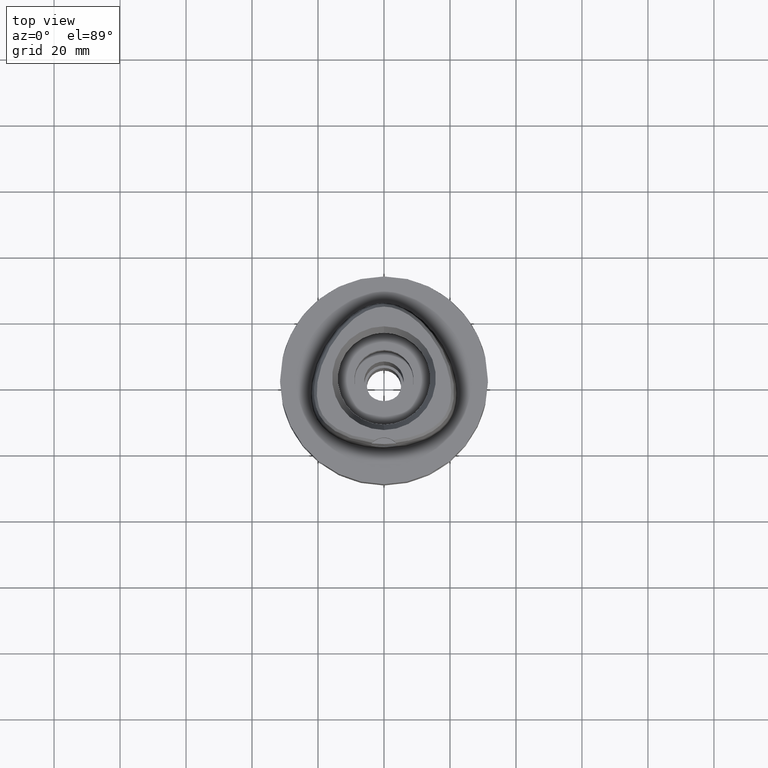
[diagram: clean part render]
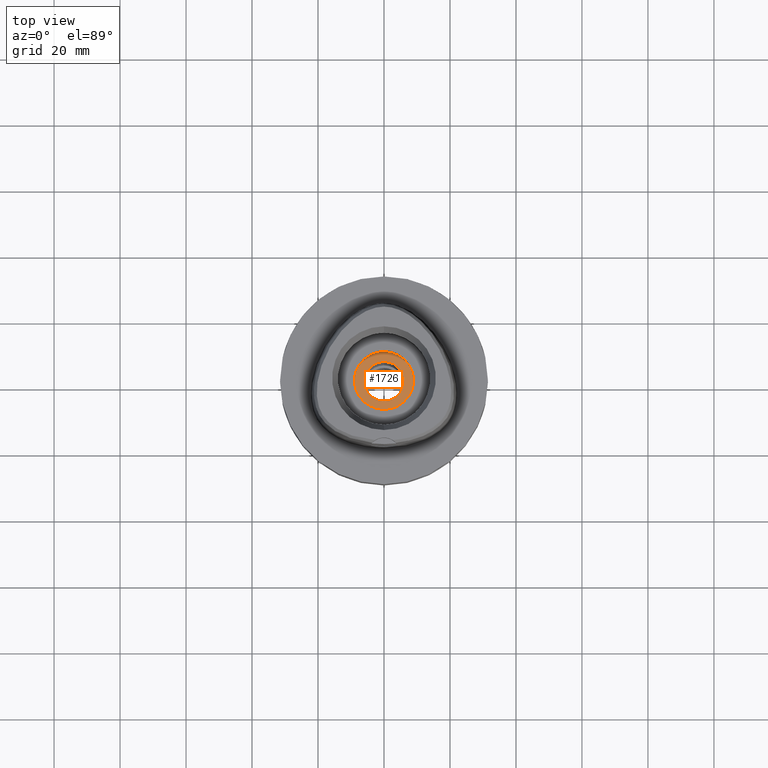
[diagram: same view with one face highlighted and labeled with its STEP entity id]
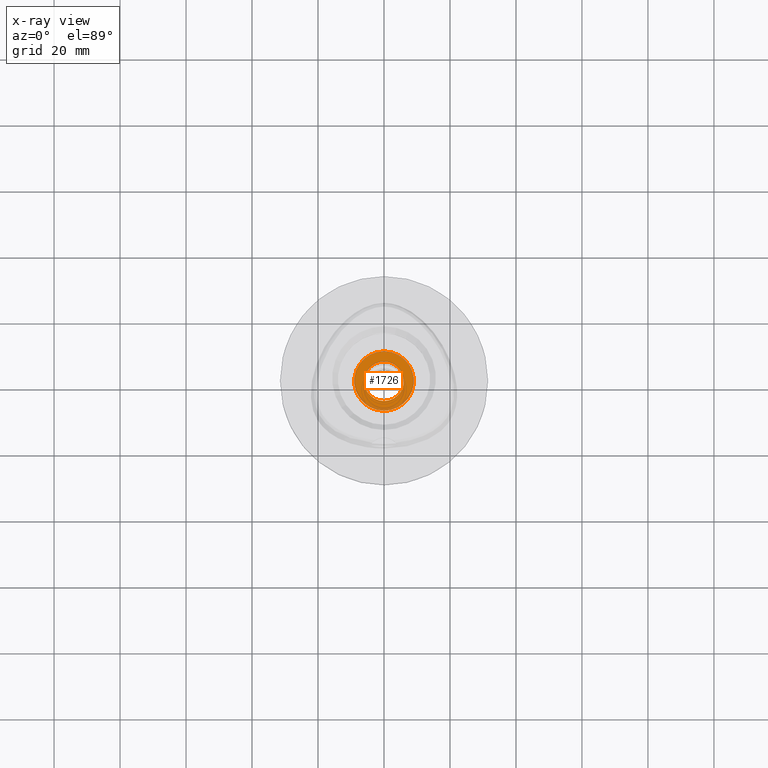
[diagram: x-ray of the same camera — body ghosted, the highlighted face saturated]
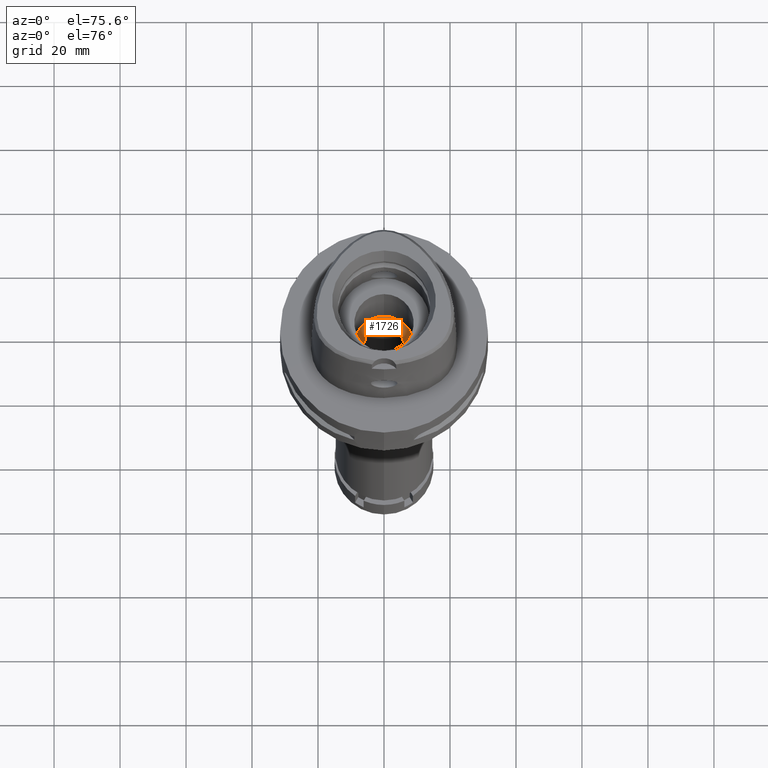
[diagram: same view with one face highlighted and labeled with its STEP entity id]
A machine part, top view. The second image highlights one B-rep face of the part: STEP entity #1726.
The next image is the same camera in x-ray: the body ghosted, the highlighted face saturated — about 6% of this face is hidden behind the body in this view.
A second angle (auxiliary view) of the same face is appended — the face is thin or edge-on in the first view.
In plain terms, the highlighted planar face has unit normal (0, 0, -1).
Its self-contained STEP definition (entity closure, byte-faithful):
#447 = EDGE_CURVE ( 'NONE', #647, #3024, #2886, .T. ) ;
#503 = EDGE_CURVE ( 'NONE', #3947, #640, #4582, .T. ) ;
#584 = DIRECTION ( 'NONE',  ( 0.0000000000000000000, -1.000000000000000000, 0.0000000000000000000 ) ) ;
#640 = VERTEX_POINT ( 'NONE', #2764 ) ;
#647 = VERTEX_POINT ( 'NONE', #683 ) ;
#683 = CARTESIAN_POINT ( 'NONE',  ( 0.0000000000000000000, -6.000000000000000000, -16.00000000000000000 ) ) ;
#984 = AXIS2_PLACEMENT_3D ( 'NONE', #3497, #5207, #1354 ) ;
#1105 = EDGE_CURVE ( 'NONE', #640, #3947, #4233, .T. ) ;
#1107 = DIRECTION ( 'NONE',  ( 0.0000000000000000000, 0.0000000000000000000, 1.000000000000000000 ) ) ;
#1354 = DIRECTION ( 'NONE',  ( 0.0000000000000000000, -1.000000000000000000, 0.0000000000000000000 ) ) ;
#1617 = DIRECTION ( 'NONE',  ( 0.0000000000000000000, -1.000000000000000000, 0.0000000000000000000 ) ) ;
#1726 = ADVANCED_FACE ( 'NONE', ( #1952, #3660 ), #5043, .F. ) ;
#1882 = AXIS2_PLACEMENT_3D ( 'NONE', #2406, #5011, #1617 ) ;
#1950 = CARTESIAN_POINT ( 'NONE',  ( 0.0000000000000000000, 0.0000000000000000000, -16.00000000000000000 ) ) ;
#1952 = FACE_OUTER_BOUND ( 'NONE', #4597, .T. ) ;
#2076 = AXIS2_PLACEMENT_3D ( 'NONE', #5373, #1107, #584 ) ;
#2237 = AXIS2_PLACEMENT_3D ( 'NONE', #2564, #5528, #5450 ) ;
#2406 = CARTESIAN_POINT ( 'NONE',  ( 0.0000000000000000000, 1.028703311283999754E-14, -16.00000000000000000 ) ) ;
#2564 = CARTESIAN_POINT ( 'NONE',  ( 0.0000000000000000000, 1.321393896280000074E-14, -16.00000000000000000 ) ) ;
#2629 = ORIENTED_EDGE ( 'NONE', *, *, #1105, .F. ) ;
#2764 = CARTESIAN_POINT ( 'NONE',  ( 0.0000000000000000000, -9.000000000000000000, -16.00000000000000000 ) ) ;
#2865 = ORIENTED_EDGE ( 'NONE', *, *, #447, .F. ) ;
#2886 = CIRCLE ( 'NONE', #2076, 6.000000000000000000 ) ;
#3024 = VERTEX_POINT ( 'NONE', #3285 ) ;
#3136 = AXIS2_PLACEMENT_3D ( 'NONE', #1950, #4054, #5314 ) ;
#3285 = CARTESIAN_POINT ( 'NONE',  ( 0.0000000000000000000, 6.000000000000000000, -16.00000000000000000 ) ) ;
#3347 = EDGE_LOOP ( 'NONE', ( #4992, #2865 ) ) ;
#3497 = CARTESIAN_POINT ( 'NONE',  ( 0.0000000000000000000, 0.0000000000000000000, -16.00000000000000000 ) ) ;
#3660 = FACE_BOUND ( 'NONE', #3347, .T. ) ;
#3929 = EDGE_CURVE ( 'NONE', #3024, #647, #4927, .T. ) ;
#3947 = VERTEX_POINT ( 'NONE', #4489 ) ;
#4054 = DIRECTION ( 'NONE',  ( 0.0000000000000000000, 0.0000000000000000000, -1.000000000000000000 ) ) ;
#4233 = CIRCLE ( 'NONE', #984, 9.000000000000000000 ) ;
#4489 = CARTESIAN_POINT ( 'NONE',  ( 0.0000000000000000000, 9.000000000000000000, -16.00000000000000000 ) ) ;
#4504 = ORIENTED_EDGE ( 'NONE', *, *, #503, .F. ) ;
#4582 = CIRCLE ( 'NONE', #3136, 9.000000000000000000 ) ;
#4597 = EDGE_LOOP ( 'NONE', ( #4504, #2629 ) ) ;
#4927 = CIRCLE ( 'NONE', #2237, 6.000000000000000000 ) ;
#4992 = ORIENTED_EDGE ( 'NONE', *, *, #3929, .F. ) ;
#5011 = DIRECTION ( 'NONE',  ( 0.0000000000000000000, 0.0000000000000000000, -1.000000000000000000 ) ) ;
#5043 = PLANE ( 'NONE',  #1882 ) ;
#5207 = DIRECTION ( 'NONE',  ( 0.0000000000000000000, 0.0000000000000000000, -1.000000000000000000 ) ) ;
#5314 = DIRECTION ( 'NONE',  ( 0.0000000000000000000, 1.000000000000000000, 0.0000000000000000000 ) ) ;
#5373 = CARTESIAN_POINT ( 'NONE',  ( 0.0000000000000000000, 1.321393896280000074E-14, -16.00000000000000000 ) ) ;
#5450 = DIRECTION ( 'NONE',  ( 0.0000000000000000000, 1.000000000000000000, 0.0000000000000000000 ) ) ;
#5528 = DIRECTION ( 'NONE',  ( 0.0000000000000000000, 0.0000000000000000000, 1.000000000000000000 ) ) ;